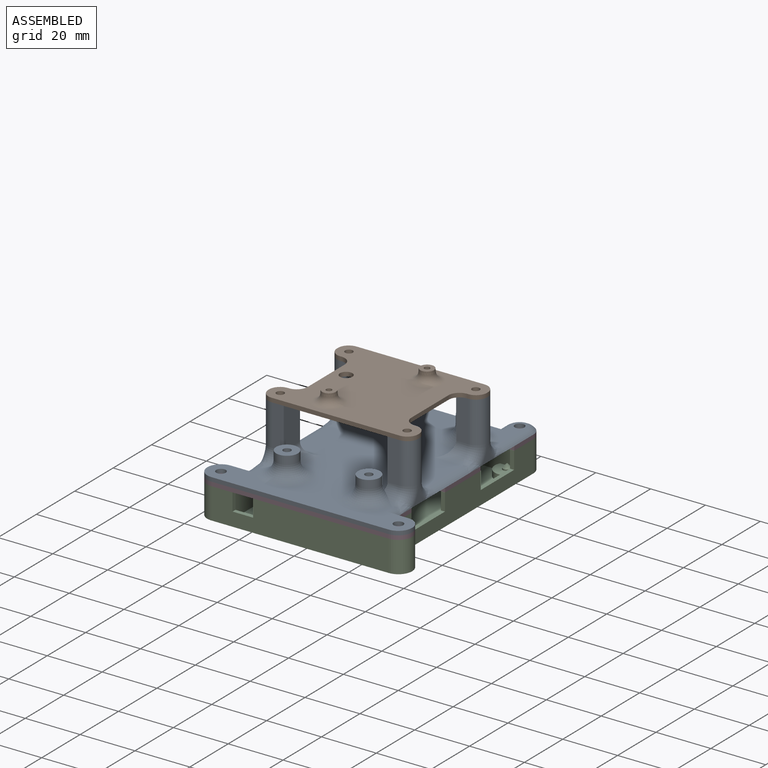
[diagram: assembled view]
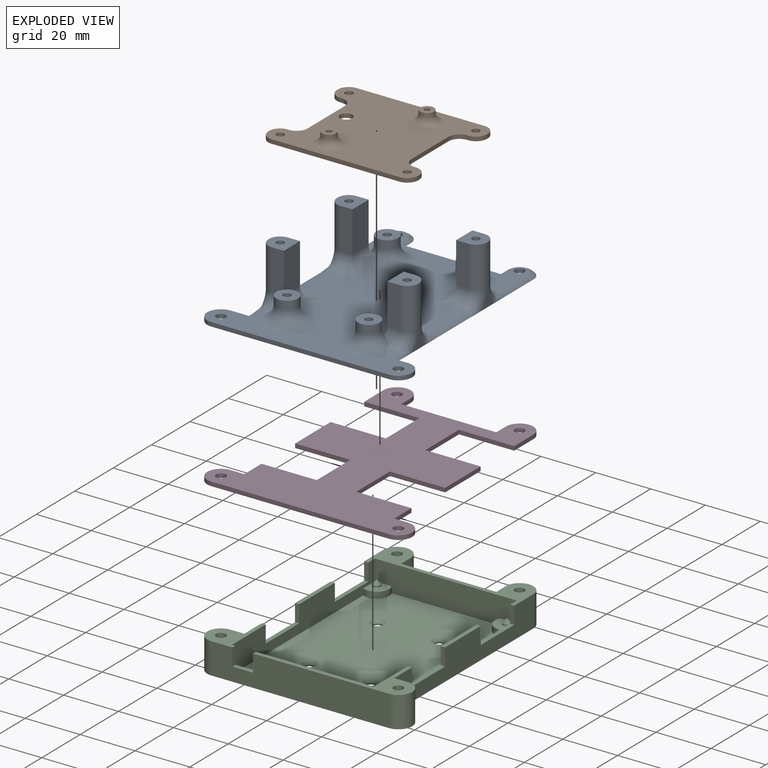
[diagram: exploded view]
GUIDED TOUR — MATED ASSEMBLY (Onshape document 62cdc433bf6db0029c8e20dd, AutoMate assembly 62cdc433bf6db0029c8e20dd_2d98a18a4e840f13da6ca52f_2cfb19b8febb69d8958ea850_default)

This assembly has 4 components, labeled P0..P3 below (a component is one placed occurrence of a part; the same part can appear more than once), held together by 3 mates. A mate is a constraint between two components; its type names the relative motion it leaves free:
  FASTENED — locks the two components together rigidly (no relative motion).
Axis/direction vectors are unit vectors and 'through' points are millimeter coordinates, both in the assembly's world frame.

MATES
  1. FASTENED "Fastened 2": P1 <-> P0, direction (0.000, 0.000, 1.000) through (-40.33, -23.82, 52.94) mm
  2. FASTENED "Fastened 1": P3 <-> P2, direction (0.000, 0.000, -1.000) through (15.16, -41.55, 29.94) mm
  3. FASTENED "Fastened 3": P3 <-> P0, direction (0.000, 0.000, 1.000) through (15.16, -41.55, 31.44) mm

ASSEMBLY ORDER
  1. P3 — the base component [order verified]
  2. P0 [order verified]
  3. P2 [order verified]
  4. P1 [order verified]
Order-tag legend:
  [order verified] — this step's position reverses a verified removal order: the component was checked to insert without passing through the ones already placed.

Of the 4 components, 2 carry the full construction recipe — the FeatureScript program that regenerates the part's solid from scratch; the rest are supplied as boundary geometry only.
Each toured component is shown spotlighted twice — in the assembled view, then in the exploded view, where a leader line traces a displaced component back to its assembled socket (saturated green if recipe-attached, orange if geometry-only; every other component desaturated gray) — followed by its recipe or geometry summary and the mates that hold it.
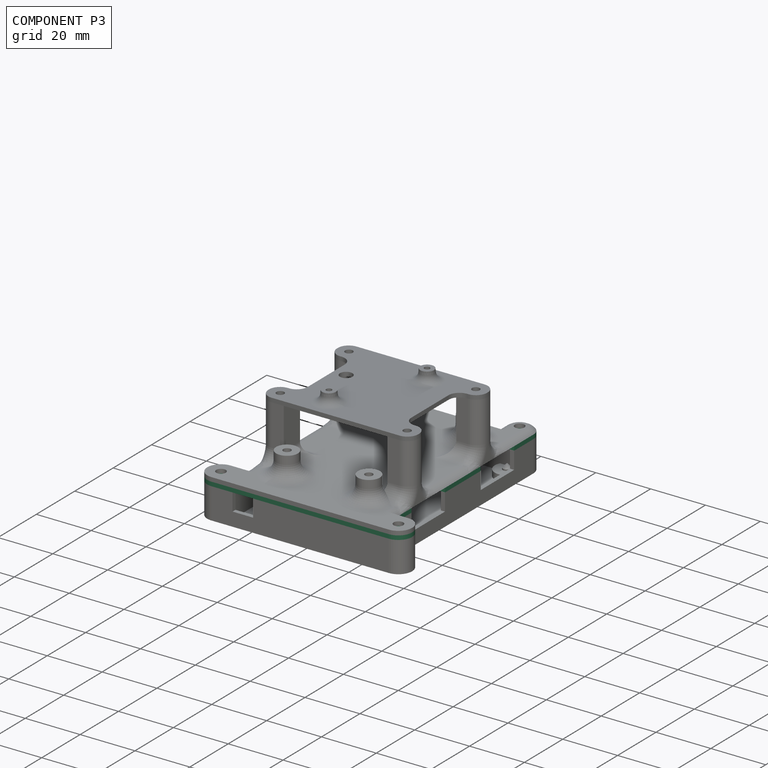
[diagram: component P3 — assembled]
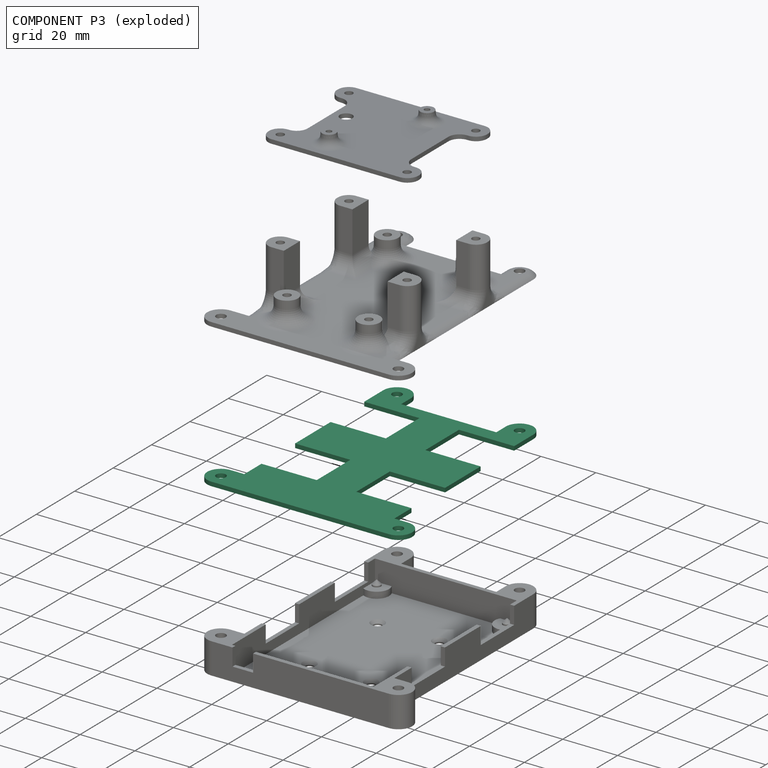
[diagram: component P3 — exploded]
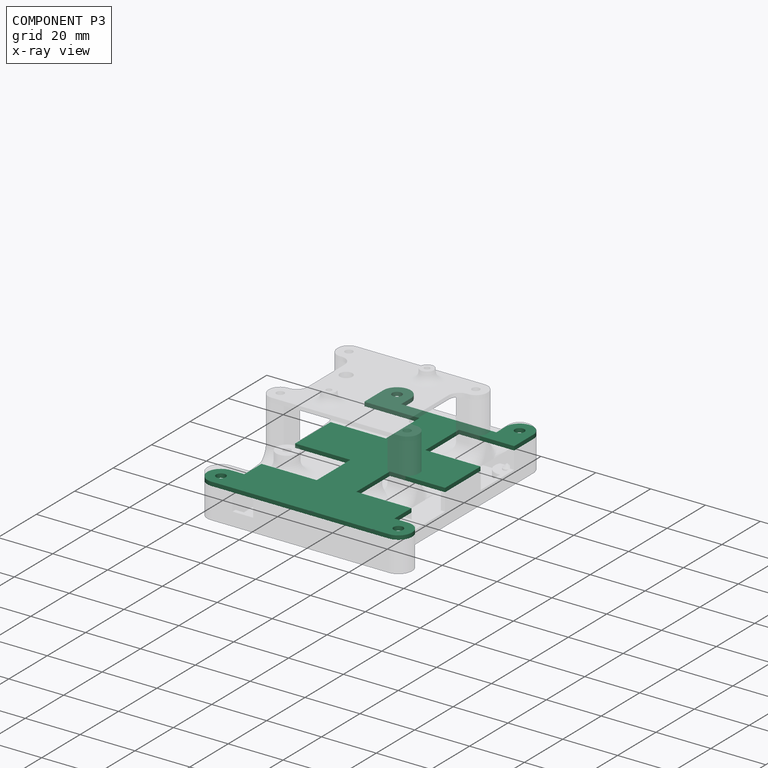
[diagram: component P3 — x-ray view]
COMPONENT P3 — recipe-attached (CADFS 00869252, mesh-verified: the recipe's output STEP matches this component's geometry to below the mesh-comparison resolution (tessellation chordal tolerance ~0.172 mm)).
Held by: FASTENED mate "Fastened 1" to P2; FASTENED mate "Fastened 3" to P0.
Construction recipe (FeatureScript — the CAD program that rebuilds this solid; sketch coordinates are in the units given by the * unit suffixes, e.g. mm):

FeatureScript 1549;
import(path : "onshape/std/geometry.fs", version : "1549.0");
import(path : "onshape/std/common.fs", version : "1549.0");
const mm = millimeter;
const VERTEX = EntityType.VERTEX;
const EDGE = EntityType.EDGE;
const FACE = EntityType.FACE;
const BODY = EntityType.BODY;
function v(x, y){return vector(x, y);}
function OD(order){return orderDisambiguation(order);}
function OSD(set){return originalSetDisambiguation(set);}
function TD(topology){return topologyDisambiguation(topology);}
function TDD(query){return trueDependencyDisambiguation(query);}
function sQuery(a, b, c) {return sketchEntityQuery(a, b, c);}

annotation { "Feature Type Name" : "Feature", "Feature Type Description" : "" }
export const myFeature = defineFeature(function(context is Context, id is Id, definition is map)
    precondition{}
    {
        {
            var Q0;
            Q0=qCreatedBy(makeId("Top.planeOp"),FACE);
            var sketch = newSketch(context, id + "F0", { "sketchPlane" : qUnion([Q0])});
            skLineSegment(sketch, "E0.bottom", {"start": v(0, 0) * mm, "end": v(51.3, 0) * mm});
            skLineSegment(sketch, "E0.top", {"start": v(0, 74) * mm, "end": v(51.3, 74) * mm});
            skLineSegment(sketch, "E0.left", {"start": v(0, 0) * mm, "end": v(0, 74) * mm});
            skLineSegment(sketch, "E0.right", {"start": v(51.3, 0) * mm, "end": v(51.3, 74) * mm});
            skLineSegment(sketch, "E1.bottom", {"start": v(0, 69) * mm, "end": v(16.7, 69) * mm, "construction": true});
            skLineSegment(sketch, "E1.top", {"start": v(0, 55) * mm, "end": v(16.7, 55) * mm, "construction": true});
            skLineSegment(sketch, "E1.left", {"start": v(0, 69) * mm, "end": v(0, 55) * mm, "construction": true});
            skLineSegment(sketch, "E1.right", {"start": v(16.7, 69) * mm, "end": v(16.7, 55) * mm, "construction": true});
            skLineSegment(sketch, "E2.bottom", {"start": v(0, 33) * mm, "end": v(16.7, 33) * mm, "construction": true});
            skLineSegment(sketch, "E2.top", {"start": v(0, 19) * mm, "end": v(16.7, 19) * mm, "construction": true});
            skLineSegment(sketch, "E2.left", {"start": v(0, 33) * mm, "end": v(0, 19) * mm, "construction": true});
            skLineSegment(sketch, "E2.right", {"start": v(16.7, 33) * mm, "end": v(16.7, 19) * mm, "construction": true});
            skLineSegment(sketch, "E3.bottom", {"start": v(51.3, 69) * mm, "end": v(34.6, 69) * mm, "construction": true});
            skLineSegment(sketch, "E3.top", {"start": v(51.3, 55) * mm, "end": v(34.6, 55) * mm, "construction": true});
            skLineSegment(sketch, "E3.left", {"start": v(51.3, 69) * mm, "end": v(51.3, 55) * mm, "construction": true});
            skLineSegment(sketch, "E3.right", {"start": v(34.6, 69) * mm, "end": v(34.6, 55) * mm, "construction": true});
            skLineSegment(sketch, "E4.bottom", {"start": v(51.3, 33) * mm, "end": v(34.6, 33) * mm, "construction": true});
            skLineSegment(sketch, "E4.top", {"start": v(51.3, 19) * mm, "end": v(34.6, 19) * mm, "construction": true});
            skLineSegment(sketch, "E4.left", {"start": v(51.3, 33) * mm, "end": v(51.3, 19) * mm, "construction": true});
            skLineSegment(sketch, "E4.right", {"start": v(34.6, 33) * mm, "end": v(34.6, 19) * mm, "construction": true});
            skCircle(sketch, "E5", {"center": v(11.21, 3.92) * mm, "radius": 1.6 * mm});
            skCircle(sketch, "E6", {"center": v(32.51, 3.92) * mm, "radius": 1.6 * mm});
            skCircle(sketch, "E7", {"center": v(49.43, 3.92) * mm, "radius": 1.6 * mm});
            skCircle(sketch, "E8", {"center": v(49.43, 72.12) * mm, "radius": 1.6 * mm});
            skCircle(sketch, "E9", {"center": v(1.88, 72.12) * mm, "radius": 1.6 * mm});
            skLineSegment(sketch, "E10", {"start": v(1.88, 72.12) * mm, "end": v(49.43, 72.12) * mm, "construction": true});
            skSolve(sketch);
        }
        {
            var Q0;
            {var subQ10=sQuery(id+"F0.wireOp",EDGE,"E0.bottom");Q0=makeQuery(id+"F0.imprint","IMPRINT",FACE,{"disambiguationData":[TD([[makeQuery(id+"F0.imprint","IMPRINT",EDGE,{"derivedFrom":subQ10}),1.0]])]});}
            var sketch = newSketch(context, id + "F1", { "sketchPlane" : qUnion([Q0])});
            skLineSegment(sketch, "E11.0", {"start": v(-1.7, -1.7) * mm, "end": v(-1.7, 75.7) * mm});
            skLineSegment(sketch, "E11.1", {"start": v(-1.7, -1.7) * mm, "end": v(53, -1.7) * mm});
            skLineSegment(sketch, "E11.2", {"start": v(53, -1.7) * mm, "end": v(53, 75.7) * mm});
            skLineSegment(sketch, "E11.3", {"start": v(-1.7, 75.7) * mm, "end": v(53, 75.7) * mm});
            skSolve(sketch);
        }
        {
            var Q0;
            Q0=qSketchRegion(id+"F1",true);
            extrude(context, id + "F2", {"entities" : qUnion([Q0]), "depth" : 1.5 * mm, "offsetDistance" : 25 * mm});
        }
        {
            var Q0;
            Q0=makeQuery(id+"F2.opExtrude","CAP_FACE",FACE,{"disambiguationData":[OSD([sQuery(id+"F1.wireOp",EDGE,"E11.0"),sQuery(id+"F1.wireOp",EDGE,"E11.1"),sQuery(id+"F1.wireOp",EDGE,"E11.2"),sQuery(id+"F1.wireOp",EDGE,"E11.3")])],"isStart":true});
            var sketch = newSketch(context, id + "F3", { "sketchPlane" : qUnion([Q0])});
            skArc(sketch, "E12", {"start": v(-6.7, 1.7) * mm, "mid": v(-11.7, -3.3) * mm, "end": v(-6.7, -8.3) * mm});
            skArc(sketch, "E13", {"start": v(-1.7, -80.7) * mm, "mid": v(3.3, -85.7) * mm, "end": v(8.3, -80.7) * mm});
            skLineSegment(sketch, "E14", {"start": v(-1.7, 1.7) * mm, "end": v(-6.7, 1.7) * mm});
            skLineSegment(sketch, "E15", {"start": v(-6.7, -8.3) * mm, "end": v(-1.7, -8.3) * mm});
            skLineSegment(sketch, "E16", {"start": v(25.65, 1.7) * mm, "end": v(25.65, -75.7) * mm, "construction": true});
            skLineSegment(sketch, "E17", {"start": v(-1.7, 1.7) * mm, "end": v(-1.7, -8.3) * mm});
            skLineSegment(sketch, "E18", {"start": v(-1.7, -75.7) * mm, "end": v(-1.7, -80.7) * mm});
            skLineSegment(sketch, "E19", {"start": v(8.3, -80.7) * mm, "end": v(8.3, -75.7) * mm});
            skLineSegment(sketch, "E20", {"start": v(-1.7, -75.7) * mm, "end": v(8.3, -75.7) * mm});
            skLineSegment(sketch, "E21.MirrorCS", {"start": v(58, -8.3) * mm, "end": v(53, -8.3) * mm});
            skLineSegment(sketch, "E22.MirrorCS", {"start": v(43, -80.7) * mm, "end": v(43, -75.7) * mm});
            skLineSegment(sketch, "E23.MirrorCS", {"start": v(53, 1.7) * mm, "end": v(58, 1.7) * mm});
            skLineSegment(sketch, "E24.MirrorCS", {"start": v(53, -75.7) * mm, "end": v(53, -80.7) * mm});
            skLineSegment(sketch, "E25.MirrorCS", {"start": v(53, 1.7) * mm, "end": v(53, -8.3) * mm});
            skLineSegment(sketch, "E26.MirrorCS", {"start": v(53, -75.7) * mm, "end": v(43, -75.7) * mm});
            skArc(sketch, "E27.MirrorCS", {"start": v(53, -80.7) * mm, "mid": v(48, -85.7) * mm, "end": v(43, -80.7) * mm});
            skArc(sketch, "E28.MirrorCS", {"start": v(58, 1.7) * mm, "mid": v(63, -3.3) * mm, "end": v(58, -8.3) * mm});
            skCircle(sketch, "E29", {"center": v(-6.7, -3.3) * mm, "radius": 1.75 * mm});
            skCircle(sketch, "E30", {"center": v(58, -3.3) * mm, "radius": 1.75 * mm});
            skCircle(sketch, "E31", {"center": v(48, -80.7) * mm, "radius": 1.75 * mm});
            skCircle(sketch, "E32", {"center": v(3.3, -80.7) * mm, "radius": 1.75 * mm});
            skSolve(sketch);
        }
        {
            var Q0;
            Q0=qSketchRegion(id+"F3",true);
            var Q1;
            {var subQ0=sQuery(id+"F1.wireOp",EDGE,"E11.0");var subQ1=sQuery(id+"F1.wireOp",EDGE,"E11.2");var subQ2=sQuery(id+"F1.wireOp",EDGE,"E11.3");Q1=makeQuery(id+"FCauK0S3PUZOb4y_1.boolean.opBoolean","SPLIT",FACE,{"disambiguationData":[TD([makeQuery(id+"F2.opExtrude","SWEPT_FACE",FACE,{"disambiguationData":[OSD([subQ2])]})])],"derivedFrom":makeQuery(id+"F2.opExtrude","CAP_FACE",FACE,{"disambiguationData":[OSD([subQ0,sQuery(id+"F1.wireOp",EDGE,"E11.1"),subQ1,subQ2])],"isStart":false})});}
            extrude(context, id + "F4", {"entities" : qUnion([Q0]), "operationType" : NewBodyOperationType.ADD, "oppositeDirection" : true, "depth" : 1.5 * mm, "endBoundEntityFace" : qUnion([Q1]), "offsetDistance" : 25 * mm});
        }
        {
            var Q0;
            Q0=makeQuery(id+"F4.boolean.opBoolean","MERGE",FACE,{"derivedFrom":[makeQuery(id+"F2.opExtrude","CAP_FACE",FACE,{"disambiguationData":[OSD([sQuery(id+"F1.wireOp",EDGE,"E11.0"),sQuery(id+"F1.wireOp",EDGE,"E11.1"),sQuery(id+"F1.wireOp",EDGE,"E11.2"),sQuery(id+"F1.wireOp",EDGE,"E11.3")])],"isStart":false}),makeQuery(id+"F4.opExtrude","CAP_FACE",FACE,{"disambiguationData":[OSD([sQuery(id+"F3.wireOp",EDGE,"E12"),sQuery(id+"F3.wireOp",EDGE,"E14"),sQuery(id+"F3.wireOp",EDGE,"E15"),sQuery(id+"F3.wireOp",EDGE,"E17"),sQuery(id+"F3.wireOp",EDGE,"E29")])],"isStart":false}),makeQuery(id+"F4.opExtrude","CAP_FACE",FACE,{"disambiguationData":[OSD([sQuery(id+"F3.wireOp",EDGE,"E13"),sQuery(id+"F3.wireOp",EDGE,"E18"),sQuery(id+"F3.wireOp",EDGE,"E19"),sQuery(id+"F3.wireOp",EDGE,"E20"),sQuery(id+"F3.wireOp",EDGE,"E32")])],"isStart":false}),makeQuery(id+"F4.opExtrude","CAP_FACE",FACE,{"disambiguationData":[OSD([sQuery(id+"F3.wireOp",EDGE,"E21.MirrorCS"),sQuery(id+"F3.wireOp",EDGE,"E23.MirrorCS"),sQuery(id+"F3.wireOp",EDGE,"E25.MirrorCS"),sQuery(id+"F3.wireOp",EDGE,"E28.MirrorCS"),sQuery(id+"F3.wireOp",EDGE,"E30")])],"isStart":false}),makeQuery(id+"F4.opExtrude","CAP_FACE",FACE,{"disambiguationData":[OSD([sQuery(id+"F3.wireOp",EDGE,"E22.MirrorCS"),sQuery(id+"F3.wireOp",EDGE,"E24.MirrorCS"),sQuery(id+"F3.wireOp",EDGE,"E26.MirrorCS"),sQuery(id+"F3.wireOp",EDGE,"E27.MirrorCS"),sQuery(id+"F3.wireOp",EDGE,"E31")])],"isStart":false})]});
            var sketch = newSketch(context, id + "F5", { "sketchPlane" : qUnion([Q0])});
            skLineSegment(sketch, "E33.0", {"start": v(-1.75, 17.25) * mm, "end": v(18.45, 17.25) * mm});
            skLineSegment(sketch, "E33.1", {"start": v(-1.75, 34.75) * mm, "end": v(-1.75, 17.25) * mm});
            skLineSegment(sketch, "E33.2", {"start": v(-1.75, 34.75) * mm, "end": v(18.45, 34.75) * mm});
            skLineSegment(sketch, "E33.3", {"start": v(18.45, 34.75) * mm, "end": v(18.45, 17.25) * mm});
            skLineSegment(sketch, "E34.0", {"start": v(32.86, 34.75) * mm, "end": v(32.86, 17.25) * mm});
            skLineSegment(sketch, "E34.1", {"start": v(53.06, 34.75) * mm, "end": v(32.86, 34.75) * mm});
            skLineSegment(sketch, "E34.2", {"start": v(53.06, 34.75) * mm, "end": v(53.06, 17.25) * mm});
            skLineSegment(sketch, "E34.3", {"start": v(53.06, 17.25) * mm, "end": v(32.86, 17.25) * mm});
            skLineSegment(sketch, "E35.0", {"start": v(-1.75, 70.75) * mm, "end": v(18.45, 70.75) * mm});
            skLineSegment(sketch, "E35.1", {"start": v(-1.75, 70.75) * mm, "end": v(-1.75, 53.25) * mm});
            skLineSegment(sketch, "E35.2", {"start": v(-1.75, 53.25) * mm, "end": v(18.45, 53.25) * mm});
            skLineSegment(sketch, "E35.3", {"start": v(18.45, 70.75) * mm, "end": v(18.45, 53.25) * mm});
            skLineSegment(sketch, "E36.0", {"start": v(32.86, 70.75) * mm, "end": v(32.86, 53.25) * mm});
            skLineSegment(sketch, "E36.1", {"start": v(53.06, 70.75) * mm, "end": v(32.86, 70.75) * mm});
            skLineSegment(sketch, "E36.2", {"start": v(53.06, 70.75) * mm, "end": v(53.06, 53.25) * mm});
            skLineSegment(sketch, "E36.3", {"start": v(53.06, 53.25) * mm, "end": v(32.86, 53.25) * mm});
            skSolve(sketch);
        }
        {
            var Q0;
            Q0 = qSketchRegion(id + "F5", true);
            extrude(context, id + "F6", {"entities" : qUnion([Q0]), "operationType" : NewBodyOperationType.REMOVE, "endBound" : BoundingType.THROUGH_ALL, "oppositeDirection" : true, "depth" : 25 * mm, "offsetDistance" : 25 * mm});
        }
    });
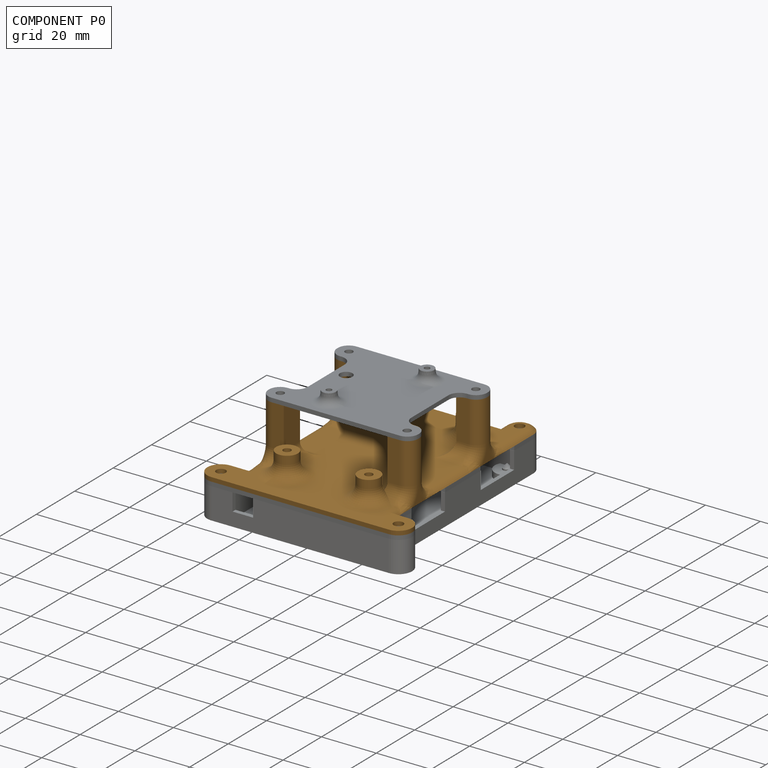
[diagram: component P0 — assembled]
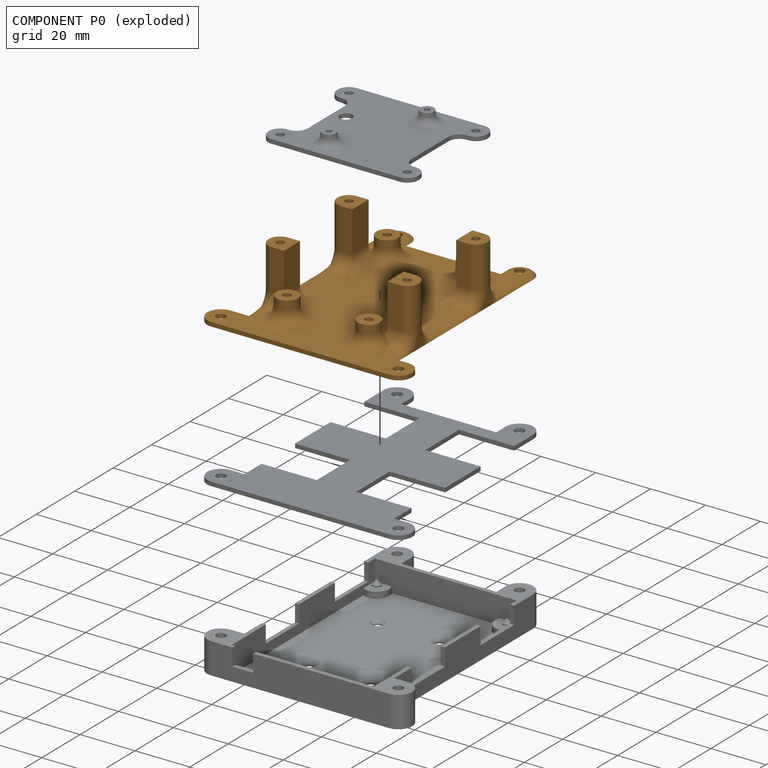
[diagram: component P0 — exploded]
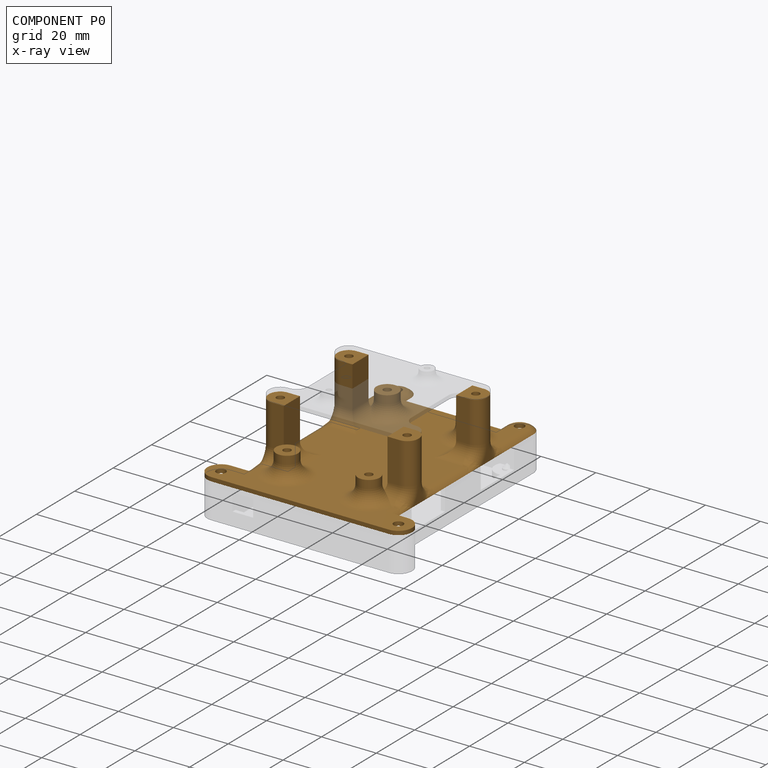
[diagram: component P0 — x-ray view]
COMPONENT P0 — geometry summary (no construction recipe available for this part):
  bounding box: 87.9 x 75.2 x 24.7 mm
  B-rep topology: 1 solid, 106 faces, 510 edges
  volume: 13876 mm^3 (8% of its bounding box)
  symmetry: mirror-symmetric across its x mid-plane
Held by: FASTENED mate "Fastened 2" to P1; FASTENED mate "Fastened 3" to P3.
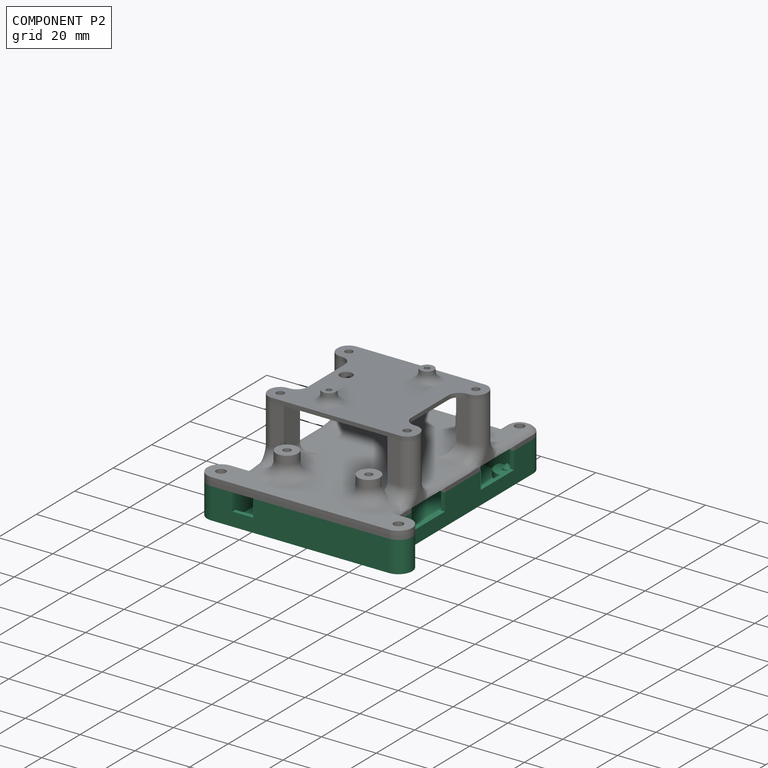
[diagram: component P2 — assembled]
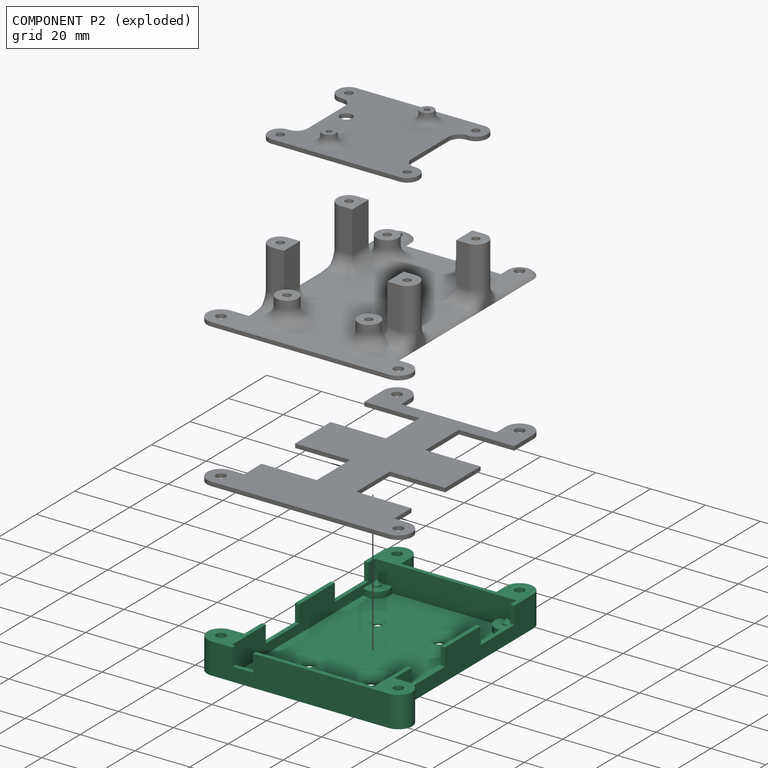
[diagram: component P2 — exploded]
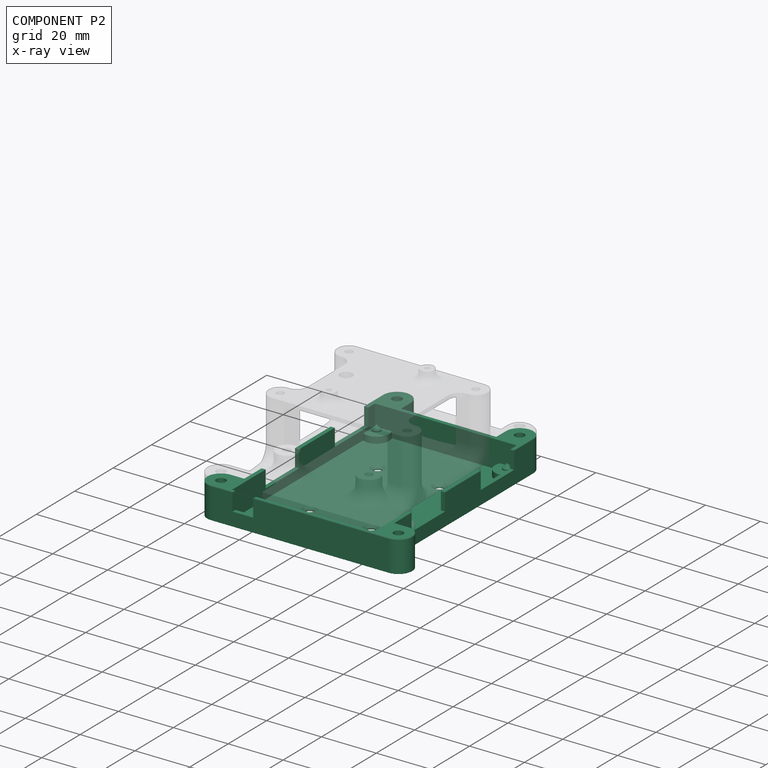
[diagram: component P2 — x-ray view]
COMPONENT P2 — recipe-attached (CADFS 00869254, mesh-verified: the recipe's output STEP matches this component's geometry to below the mesh-comparison resolution (tessellation chordal tolerance ~0.173 mm)).
Held by: FASTENED mate "Fastened 1" to P3.
Construction recipe (FeatureScript — the CAD program that rebuilds this solid; sketch coordinates are in the units given by the * unit suffixes, e.g. mm):

FeatureScript 1549;
import(path : "onshape/std/geometry.fs", version : "1549.0");
import(path : "onshape/std/common.fs", version : "1549.0");
const mm = millimeter;
const VERTEX = EntityType.VERTEX;
const EDGE = EntityType.EDGE;
const FACE = EntityType.FACE;
const BODY = EntityType.BODY;
function v(x, y){return vector(x, y);}
function OD(order){return orderDisambiguation(order);}
function OSD(set){return originalSetDisambiguation(set);}
function TD(topology){return topologyDisambiguation(topology);}
function TDD(query){return trueDependencyDisambiguation(query);}
function sQuery(a, b, c) {return sketchEntityQuery(a, b, c);}

annotation { "Feature Type Name" : "Feature", "Feature Type Description" : "" }
export const myFeature = defineFeature(function(context is Context, id is Id, definition is map)
    precondition{}
    {
        {
            var Q0;
            Q0=qCreatedBy(makeId("Top.planeOp"),FACE);
            var sketch = newSketch(context, id + "F0", { "sketchPlane" : qUnion([Q0])});
            skLineSegment(sketch, "E0.bottom", {"start": v(0, 0) * mm, "end": v(51.3, 0) * mm});
            skLineSegment(sketch, "E0.top", {"start": v(0, 74) * mm, "end": v(51.3, 74) * mm});
            skLineSegment(sketch, "E0.left", {"start": v(0, 0) * mm, "end": v(0, 74) * mm});
            skLineSegment(sketch, "E0.right", {"start": v(51.3, 0) * mm, "end": v(51.3, 74) * mm});
            skLineSegment(sketch, "E1.bottom", {"start": v(0, 69) * mm, "end": v(16.7, 69) * mm, "construction": true});
            skLineSegment(sketch, "E1.top", {"start": v(0, 55) * mm, "end": v(16.7, 55) * mm, "construction": true});
            skLineSegment(sketch, "E1.left", {"start": v(0, 69) * mm, "end": v(0, 55) * mm, "construction": true});
            skLineSegment(sketch, "E1.right", {"start": v(16.7, 69) * mm, "end": v(16.7, 55) * mm, "construction": true});
            skLineSegment(sketch, "E2.bottom", {"start": v(0, 33) * mm, "end": v(16.7, 33) * mm, "construction": true});
            skLineSegment(sketch, "E2.top", {"start": v(0, 19) * mm, "end": v(16.7, 19) * mm, "construction": true});
            skLineSegment(sketch, "E2.left", {"start": v(0, 33) * mm, "end": v(0, 19) * mm, "construction": true});
            skLineSegment(sketch, "E2.right", {"start": v(16.7, 33) * mm, "end": v(16.7, 19) * mm, "construction": true});
            skLineSegment(sketch, "E3.bottom", {"start": v(51.3, 69) * mm, "end": v(34.6, 69) * mm, "construction": true});
            skLineSegment(sketch, "E3.top", {"start": v(51.3, 55) * mm, "end": v(34.6, 55) * mm, "construction": true});
            skLineSegment(sketch, "E3.left", {"start": v(51.3, 69) * mm, "end": v(51.3, 55) * mm, "construction": true});
            skLineSegment(sketch, "E3.right", {"start": v(34.6, 69) * mm, "end": v(34.6, 55) * mm, "construction": true});
            skLineSegment(sketch, "E4.bottom", {"start": v(51.3, 33) * mm, "end": v(34.6, 33) * mm, "construction": true});
            skLineSegment(sketch, "E4.top", {"start": v(51.3, 19) * mm, "end": v(34.6, 19) * mm, "construction": true});
            skLineSegment(sketch, "E4.left", {"start": v(51.3, 33) * mm, "end": v(51.3, 19) * mm, "construction": true});
            skLineSegment(sketch, "E4.right", {"start": v(34.6, 33) * mm, "end": v(34.6, 19) * mm, "construction": true});
            skCircle(sketch, "E5", {"center": v(11.21, 3.92) * mm, "radius": 1.6 * mm});
            skCircle(sketch, "E6", {"center": v(32.51, 3.92) * mm, "radius": 1.6 * mm});
            skCircle(sketch, "E7", {"center": v(49.43, 3.92) * mm, "radius": 1.6 * mm});
            skCircle(sketch, "E8", {"center": v(49.43, 72.12) * mm, "radius": 1.6 * mm});
            skCircle(sketch, "E9", {"center": v(1.88, 72.12) * mm, "radius": 1.6 * mm});
            skLineSegment(sketch, "E10", {"start": v(1.88, 72.12) * mm, "end": v(49.43, 72.12) * mm, "construction": true});
            skSolve(sketch);
        }
        {
            var Q0;
            {var subQ10=sQuery(id+"F0.wireOp",EDGE,"E0.bottom");Q0=makeQuery(id+"F0.imprint","IMPRINT",FACE,{"disambiguationData":[TD([[makeQuery(id+"F0.imprint","IMPRINT",EDGE,{"derivedFrom":subQ10}),1.0]])]});}
            var sketch = newSketch(context, id + "F1", { "sketchPlane" : qUnion([Q0])});
            skLineSegment(sketch, "E11.0", {"start": v(-1.7, -1.7) * mm, "end": v(-1.7, 75.7) * mm});
            skLineSegment(sketch, "E11.1", {"start": v(-1.7, -1.7) * mm, "end": v(53, -1.7) * mm});
            skLineSegment(sketch, "E11.2", {"start": v(53, -1.7) * mm, "end": v(53, 75.7) * mm});
            skLineSegment(sketch, "E11.3", {"start": v(-1.7, 75.7) * mm, "end": v(53, 75.7) * mm});
            skSolve(sketch);
        }
        {
            var Q0;
            Q0=qSketchRegion(id+"F1",true);
            extrude(context, id + "F2", {"entities" : qUnion([Q0]), "depth" : 11.3 * mm, "offsetDistance" : 25 * mm});
        }
        {
            var Q0;
            Q0=makeQuery(id+"F2.opExtrude","CAP_FACE",FACE,{"disambiguationData":[OSD([sQuery(id+"F1.wireOp",EDGE,"E11.0"),sQuery(id+"F1.wireOp",EDGE,"E11.1"),sQuery(id+"F1.wireOp",EDGE,"E11.2"),sQuery(id+"F1.wireOp",EDGE,"E11.3")])],"isStart":false});
            shell(context, id + "F3", {"entities" : qUnion([Q0]), "thickness" : 1.5 * mm});
        }
        {
            var Q0;
            Q0=makeQuery(id+"F2.opExtrude","CAP_FACE",FACE,{"disambiguationData":[OSD([sQuery(id+"F1.wireOp",EDGE,"E11.0"),sQuery(id+"F1.wireOp",EDGE,"E11.1"),sQuery(id+"F1.wireOp",EDGE,"E11.2"),sQuery(id+"F1.wireOp",EDGE,"E11.3")])],"isStart":false});
            var sketch = newSketch(context, id + "F4", { "sketchPlane" : qUnion([Q0])});
            skLineSegment(sketch, "E12.0", {"start": v(16.7, 33) * mm, "end": v(16.7, 19) * mm, "construction": true});
            skLineSegment(sketch, "E13.0", {"start": v(34.6, 33) * mm, "end": v(34.6, 19) * mm, "construction": true});
            skLineSegment(sketch, "E14.0", {"start": v(16.7, 69) * mm, "end": v(16.7, 55) * mm, "construction": true});
            skLineSegment(sketch, "E15.0", {"start": v(34.6, 69) * mm, "end": v(34.6, 55) * mm, "construction": true});
            skLineSegment(sketch, "E16.0", {"start": v(0, 33) * mm, "end": v(16.7, 33) * mm, "construction": true});
            skLineSegment(sketch, "E17.0", {"start": v(0, 19) * mm, "end": v(16.7, 19) * mm, "construction": true});
            skLineSegment(sketch, "E18.0", {"start": v(51.3, 33) * mm, "end": v(34.6, 33) * mm, "construction": true});
            skLineSegment(sketch, "E19.0", {"start": v(51.3, 19) * mm, "end": v(34.6, 19) * mm, "construction": true});
            skLineSegment(sketch, "E20.0", {"start": v(51.3, 55) * mm, "end": v(34.6, 55) * mm, "construction": true});
            skLineSegment(sketch, "E21.0", {"start": v(51.3, 69) * mm, "end": v(34.6, 69) * mm, "construction": true});
            skLineSegment(sketch, "E22.0", {"start": v(0, 55) * mm, "end": v(16.7, 55) * mm, "construction": true});
            skLineSegment(sketch, "E23.0", {"start": v(0, 69) * mm, "end": v(16.7, 69) * mm, "construction": true});
            skLineSegment(sketch, "E24.0", {"start": v(0, 33) * mm, "end": v(0, 19) * mm});
            skLineSegment(sketch, "E25.0", {"start": v(51.3, 33) * mm, "end": v(51.3, 19) * mm});
            skLineSegment(sketch, "E26.0", {"start": v(0, 69) * mm, "end": v(0, 55) * mm});
            skLineSegment(sketch, "E27.0", {"start": v(51.3, 69) * mm, "end": v(51.3, 55) * mm});
            skLineSegment(sketch, "E28.0", {"start": v(-1.7, 17.3) * mm, "end": v(18.4, 17.3) * mm});
            skLineSegment(sketch, "E28.1", {"start": v(-1.7, 34.7) * mm, "end": v(-1.7, 17.3) * mm});
            skLineSegment(sketch, "E28.2", {"start": v(-1.7, 34.7) * mm, "end": v(18.4, 34.7) * mm});
            skLineSegment(sketch, "E28.3", {"start": v(18.4, 34.7) * mm, "end": v(18.4, 17.3) * mm});
            skLineSegment(sketch, "E29.0", {"start": v(53, 17.3) * mm, "end": v(32.9, 17.3) * mm});
            skLineSegment(sketch, "E29.1", {"start": v(53, 34.7) * mm, "end": v(53, 17.3) * mm});
            skLineSegment(sketch, "E29.2", {"start": v(53, 34.7) * mm, "end": v(32.9, 34.7) * mm});
            skLineSegment(sketch, "E29.3", {"start": v(32.9, 34.7) * mm, "end": v(32.9, 17.3) * mm});
            skLineSegment(sketch, "E30.0", {"start": v(-1.7, 53.3) * mm, "end": v(18.4, 53.3) * mm});
            skLineSegment(sketch, "E30.1", {"start": v(-1.7, 70.7) * mm, "end": v(-1.7, 53.3) * mm});
            skLineSegment(sketch, "E30.2", {"start": v(-1.7, 70.7) * mm, "end": v(18.4, 70.7) * mm});
            skLineSegment(sketch, "E30.3", {"start": v(18.4, 70.7) * mm, "end": v(18.4, 53.3) * mm});
            skLineSegment(sketch, "E31.0", {"start": v(53, 53.3) * mm, "end": v(32.9, 53.3) * mm});
            skLineSegment(sketch, "E31.1", {"start": v(53, 70.7) * mm, "end": v(53, 53.3) * mm});
            skLineSegment(sketch, "E31.2", {"start": v(53, 70.7) * mm, "end": v(32.9, 70.7) * mm});
            skLineSegment(sketch, "E31.3", {"start": v(32.9, 70.7) * mm, "end": v(32.9, 53.3) * mm});
            skSolve(sketch);
        }
        {
            var Q0;
            Q0=qSketchRegion(id+"F4",true);
            var Q1;
            Q1=makeQuery(id+"F3.opShell","OFFSET_FACE",FACE,{"disambiguationData":[OSD([sQuery(id+"F1.wireOp",EDGE,"E11.0"),sQuery(id+"F1.wireOp",EDGE,"E11.1"),sQuery(id+"F1.wireOp",EDGE,"E11.2"),sQuery(id+"F1.wireOp",EDGE,"E11.3")])]});
            extrude(context, id + "F5", {"entities" : qUnion([Q0]), "operationType" : NewBodyOperationType.REMOVE, "endBound" : BoundingType.UP_TO_SURFACE, "oppositeDirection" : true, "depth" : 25 * mm, "endBoundEntityFace" : qUnion([Q1]), "hasOffset" : true, "offsetDistance" : 3.5 * mm});
        }
        {
            var Q0;
            Q0=makeQuery(id+"F3.opShell","OFFSET_FACE",FACE,{"disambiguationData":[OSD([sQuery(id+"F1.wireOp",EDGE,"E11.0"),sQuery(id+"F1.wireOp",EDGE,"E11.1"),sQuery(id+"F1.wireOp",EDGE,"E11.2"),sQuery(id+"F1.wireOp",EDGE,"E11.3")])]});
            var sketch = newSketch(context, id + "F6", { "sketchPlane" : qUnion([Q0])});
            skCircle(sketch, "E32.0", {"center": v(1.88, 72.12) * mm, "radius": 1.5 * mm, "construction": true});
            skCircle(sketch, "E33.0", {"center": v(49.43, 72.12) * mm, "radius": 1.5 * mm, "construction": true});
            skCircle(sketch, "E34.0", {"center": v(11.21, 3.92) * mm, "radius": 1.5 * mm, "construction": true});
            skCircle(sketch, "E35.0", {"center": v(32.51, 3.92) * mm, "radius": 1.5 * mm, "construction": true});
            skCircle(sketch, "E36.0", {"center": v(49.43, 3.92) * mm, "radius": 1.5 * mm, "construction": true});
            skArc(sketch, "E37.0", {"start": v(-1.7, 69.4) * mm, "mid": v(6.38, 72.12) * mm, "end": v(-1.7, 74.85) * mm});
            skArc(sketch, "E38.0", {"start": v(53, 74.85) * mm, "mid": v(44.93, 72.12) * mm, "end": v(53, 69.4) * mm});
            skCircle(sketch, "E39.0", {"center": v(11.21, 3.92) * mm, "radius": 4.5 * mm});
            skCircle(sketch, "E40.0", {"center": v(32.51, 3.92) * mm, "radius": 4.5 * mm});
            skArc(sketch, "E41.0", {"start": v(53, 6.65) * mm, "mid": v(44.93, 3.92) * mm, "end": v(53, 1.2) * mm});
            skLineSegment(sketch, "E42.0", {"start": v(53, 1.2) * mm, "end": v(53, 6.65) * mm});
            skLineSegment(sketch, "E43.0", {"start": v(-1.7, 69.4) * mm, "end": v(-1.7, 74.85) * mm});
            skPoint(sketch, "E44.orphan", {"position": v(53, -1.7) * mm});
            skLineSegment(sketch, "E45.trimOffspring", {"start": v(53, 69.4) * mm, "end": v(53, 74.85) * mm});
            skPoint(sketch, "E46.orphan", {"position": v(-1.7, -1.7) * mm});
            skPoint(sketch, "E47.0.start.orphan", {"position": v(-1.7, 75.7) * mm});
            skPoint(sketch, "E48.orphan", {"position": v(53, 75.7) * mm});
            skSolve(sketch);
        }
        {
            var Q0;
            Q0=qSketchRegion(id+"F6",true);
            var Q1;
            Q1=makeQuery(id+"F5.boolean.opBoolean","COPY",FACE,{"derivedFrom":makeQuery(id+"F5.opExtrude","CAP_FACE",FACE,{"disambiguationData":[OSD([sQuery(id+"F4.wireOp",EDGE,"E28.0"),sQuery(id+"F4.wireOp",EDGE,"E28.1"),sQuery(id+"F4.wireOp",EDGE,"E28.2"),sQuery(id+"F4.wireOp",EDGE,"E28.3")])],"isStart":false})});
            extrude(context, id + "F7", {"entities" : qUnion([Q0]), "operationType" : NewBodyOperationType.ADD, "endBound" : BoundingType.UP_TO_SURFACE, "depth" : 25 * mm, "endBoundEntityFace" : qUnion([Q1]), "hasOffset" : true, "offsetDistance" : 1.2 * mm});
        }
        {
            var Q0;
            Q0=makeQuery(id+"F2.opExtrude","CAP_FACE",FACE,{"disambiguationData":[OSD([sQuery(id+"F1.wireOp",EDGE,"E11.0"),sQuery(id+"F1.wireOp",EDGE,"E11.1"),sQuery(id+"F1.wireOp",EDGE,"E11.2"),sQuery(id+"F1.wireOp",EDGE,"E11.3")])],"isStart":true});
            var sketch = newSketch(context, id + "F8", { "sketchPlane" : qUnion([Q0])});
            skLineSegment(sketch, "E49", {"start": v(25.65, -75.7) * mm, "end": v(25.65, 1.7) * mm, "construction": true});
            skLineSegment(sketch, "E50", {"start": v(-1.7, -37) * mm, "end": v(53, -37) * mm, "construction": true});
            skCircle(sketch, "E51", {"center": v(14.4, -54.75) * mm, "radius": 1.5 * mm});
            skCircle(sketch, "E52", {"center": v(14.4, -19.25) * mm, "radius": 1.5 * mm});
            skCircle(sketch, "E53", {"center": v(36.9, -19.25) * mm, "radius": 1.5 * mm});
            skCircle(sketch, "E54", {"center": v(36.9, -54.75) * mm, "radius": 1.5 * mm});
            skLineSegment(sketch, "E55", {"start": v(36.9, -54.75) * mm, "end": v(36.9, -19.25) * mm, "construction": true});
            skLineSegment(sketch, "E56", {"start": v(14.4, -19.25) * mm, "end": v(36.9, -19.25) * mm, "construction": true});
            skLineSegment(sketch, "E57", {"start": v(14.4, -54.75) * mm, "end": v(14.4, -19.25) * mm, "construction": true});
            skLineSegment(sketch, "E58", {"start": v(14.4, -54.75) * mm, "end": v(36.9, -54.75) * mm, "construction": true});
            skLineSegment(sketch, "E59", {"start": v(14.4, -37) * mm, "end": v(36.9, -37) * mm, "construction": true});
            skLineSegment(sketch, "E60", {"start": v(25.65, -19.25) * mm, "end": v(25.65, -54.75) * mm, "construction": true});
            skSolve(sketch);
        }
        {
            var Q0;
            Q0=qSketchRegion(id+"F8",true);
            extrude(context, id + "F9", {"entities" : qUnion([Q0]), "operationType" : NewBodyOperationType.REMOVE, "endBound" : BoundingType.THROUGH_ALL, "oppositeDirection" : true, "depth" : 25 * mm, "offsetDistance" : 25 * mm});
        }
        {
            var Q0;
            {var subQ0=sQuery(id+"F1.wireOp",EDGE,"E11.3");var subQ1=sQuery(id+"F1.wireOp",EDGE,"E11.2");var subQ2=sQuery(id+"F1.wireOp",EDGE,"E11.1");var subQ3=sQuery(id+"F1.wireOp",EDGE,"E11.0");Q0=makeQuery(id+"F9.boolean.opBoolean","INTERSECT",EDGE,{"derivedFrom":[makeQuery(id+"F7.boolean.opBoolean","SPLIT",FACE,{"disambiguationData":[TD([makeQuery(id+"F3.opShell","OFFSET_FACE",FACE,{"disambiguationData":[OSD([subQ3])]}),makeQuery(id+"F3.opShell","OFFSET_FACE",FACE,{"disambiguationData":[OSD([subQ2])]}),makeQuery(id+"F3.opShell","OFFSET_FACE",FACE,{"disambiguationData":[OSD([subQ1])]}),makeQuery(id+"F3.opShell","OFFSET_FACE",FACE,{"disambiguationData":[OSD([subQ0])]}),makeQuery(id+"F7.opExtrude","SWEPT_FACE",FACE,{"disambiguationData":[OSD([sQuery(id+"F6.wireOp",EDGE,"E37.0")])]}),makeQuery(id+"F7.opExtrude","SWEPT_FACE",FACE,{"disambiguationData":[OSD([sQuery(id+"F6.wireOp",EDGE,"E38.0")])]}),makeQuery(id+"F7.opExtrude","SWEPT_FACE",FACE,{"disambiguationData":[OSD([sQuery(id+"F6.wireOp",EDGE,"E39.0")])]}),makeQuery(id+"F7.opExtrude","SWEPT_FACE",FACE,{"disambiguationData":[OSD([sQuery(id+"F6.wireOp",EDGE,"E40.0")])]}),makeQuery(id+"F7.opExtrude","SWEPT_FACE",FACE,{"disambiguationData":[OSD([sQuery(id+"F6.wireOp",EDGE,"E41.0")])]})])],"derivedFrom":makeQuery(id+"F3.opShell","OFFSET_FACE",FACE,{"disambiguationData":[OSD([subQ3,subQ2,subQ1,subQ0])]})}),makeQuery(id+"F9.opExtrude","SWEPT_FACE",FACE,{"disambiguationData":[OSD([sQuery(id+"F8.wireOp",EDGE,"E54")])]})]});}
            var Q1;
            {var subQ0=sQuery(id+"F1.wireOp",EDGE,"E11.3");var subQ1=sQuery(id+"F1.wireOp",EDGE,"E11.2");var subQ2=sQuery(id+"F1.wireOp",EDGE,"E11.1");var subQ3=sQuery(id+"F1.wireOp",EDGE,"E11.0");Q1=makeQuery(id+"F9.boolean.opBoolean","INTERSECT",EDGE,{"derivedFrom":[makeQuery(id+"F7.boolean.opBoolean","SPLIT",FACE,{"disambiguationData":[TD([makeQuery(id+"F3.opShell","OFFSET_FACE",FACE,{"disambiguationData":[OSD([subQ3])]}),makeQuery(id+"F3.opShell","OFFSET_FACE",FACE,{"disambiguationData":[OSD([subQ2])]}),makeQuery(id+"F3.opShell","OFFSET_FACE",FACE,{"disambiguationData":[OSD([subQ1])]}),makeQuery(id+"F3.opShell","OFFSET_FACE",FACE,{"disambiguationData":[OSD([subQ0])]}),makeQuery(id+"F7.opExtrude","SWEPT_FACE",FACE,{"disambiguationData":[OSD([sQuery(id+"F6.wireOp",EDGE,"E37.0")])]}),makeQuery(id+"F7.opExtrude","SWEPT_FACE",FACE,{"disambiguationData":[OSD([sQuery(id+"F6.wireOp",EDGE,"E38.0")])]}),makeQuery(id+"F7.opExtrude","SWEPT_FACE",FACE,{"disambiguationData":[OSD([sQuery(id+"F6.wireOp",EDGE,"E39.0")])]}),makeQuery(id+"F7.opExtrude","SWEPT_FACE",FACE,{"disambiguationData":[OSD([sQuery(id+"F6.wireOp",EDGE,"E40.0")])]}),makeQuery(id+"F7.opExtrude","SWEPT_FACE",FACE,{"disambiguationData":[OSD([sQuery(id+"F6.wireOp",EDGE,"E41.0")])]})])],"derivedFrom":makeQuery(id+"F3.opShell","OFFSET_FACE",FACE,{"disambiguationData":[OSD([subQ3,subQ2,subQ1,subQ0])]})}),makeQuery(id+"F9.opExtrude","SWEPT_FACE",FACE,{"disambiguationData":[OSD([sQuery(id+"F8.wireOp",EDGE,"E51")])]})]});}
            var Q2;
            {var subQ0=sQuery(id+"F1.wireOp",EDGE,"E11.3");var subQ1=sQuery(id+"F1.wireOp",EDGE,"E11.2");var subQ2=sQuery(id+"F1.wireOp",EDGE,"E11.1");var subQ3=sQuery(id+"F1.wireOp",EDGE,"E11.0");Q2=makeQuery(id+"F9.boolean.opBoolean","INTERSECT",EDGE,{"derivedFrom":[makeQuery(id+"F7.boolean.opBoolean","SPLIT",FACE,{"disambiguationData":[TD([makeQuery(id+"F3.opShell","OFFSET_FACE",FACE,{"disambiguationData":[OSD([subQ3])]}),makeQuery(id+"F3.opShell","OFFSET_FACE",FACE,{"disambiguationData":[OSD([subQ2])]}),makeQuery(id+"F3.opShell","OFFSET_FACE",FACE,{"disambiguationData":[OSD([subQ1])]}),makeQuery(id+"F3.opShell","OFFSET_FACE",FACE,{"disambiguationData":[OSD([subQ0])]}),makeQuery(id+"F7.opExtrude","SWEPT_FACE",FACE,{"disambiguationData":[OSD([sQuery(id+"F6.wireOp",EDGE,"E37.0")])]}),makeQuery(id+"F7.opExtrude","SWEPT_FACE",FACE,{"disambiguationData":[OSD([sQuery(id+"F6.wireOp",EDGE,"E38.0")])]}),makeQuery(id+"F7.opExtrude","SWEPT_FACE",FACE,{"disambiguationData":[OSD([sQuery(id+"F6.wireOp",EDGE,"E39.0")])]}),makeQuery(id+"F7.opExtrude","SWEPT_FACE",FACE,{"disambiguationData":[OSD([sQuery(id+"F6.wireOp",EDGE,"E40.0")])]}),makeQuery(id+"F7.opExtrude","SWEPT_FACE",FACE,{"disambiguationData":[OSD([sQuery(id+"F6.wireOp",EDGE,"E41.0")])]})])],"derivedFrom":makeQuery(id+"F3.opShell","OFFSET_FACE",FACE,{"disambiguationData":[OSD([subQ3,subQ2,subQ1,subQ0])]})}),makeQuery(id+"F9.opExtrude","SWEPT_FACE",FACE,{"disambiguationData":[OSD([sQuery(id+"F8.wireOp",EDGE,"E53")])]})]});}
            var Q3;
            {var subQ0=sQuery(id+"F1.wireOp",EDGE,"E11.3");var subQ1=sQuery(id+"F1.wireOp",EDGE,"E11.2");var subQ2=sQuery(id+"F1.wireOp",EDGE,"E11.1");var subQ3=sQuery(id+"F1.wireOp",EDGE,"E11.0");Q3=makeQuery(id+"F9.boolean.opBoolean","INTERSECT",EDGE,{"derivedFrom":[makeQuery(id+"F7.boolean.opBoolean","SPLIT",FACE,{"disambiguationData":[TD([makeQuery(id+"F3.opShell","OFFSET_FACE",FACE,{"disambiguationData":[OSD([subQ3])]}),makeQuery(id+"F3.opShell","OFFSET_FACE",FACE,{"disambiguationData":[OSD([subQ2])]}),makeQuery(id+"F3.opShell","OFFSET_FACE",FACE,{"disambiguationData":[OSD([subQ1])]}),makeQuery(id+"F3.opShell","OFFSET_FACE",FACE,{"disambiguationData":[OSD([subQ0])]}),makeQuery(id+"F7.opExtrude","SWEPT_FACE",FACE,{"disambiguationData":[OSD([sQuery(id+"F6.wireOp",EDGE,"E37.0")])]}),makeQuery(id+"F7.opExtrude","SWEPT_FACE",FACE,{"disambiguationData":[OSD([sQuery(id+"F6.wireOp",EDGE,"E38.0")])]}),makeQuery(id+"F7.opExtrude","SWEPT_FACE",FACE,{"disambiguationData":[OSD([sQuery(id+"F6.wireOp",EDGE,"E39.0")])]}),makeQuery(id+"F7.opExtrude","SWEPT_FACE",FACE,{"disambiguationData":[OSD([sQuery(id+"F6.wireOp",EDGE,"E40.0")])]}),makeQuery(id+"F7.opExtrude","SWEPT_FACE",FACE,{"disambiguationData":[OSD([sQuery(id+"F6.wireOp",EDGE,"E41.0")])]})])],"derivedFrom":makeQuery(id+"F3.opShell","OFFSET_FACE",FACE,{"disambiguationData":[OSD([subQ3,subQ2,subQ1,subQ0])]})}),makeQuery(id+"F9.opExtrude","SWEPT_FACE",FACE,{"disambiguationData":[OSD([sQuery(id+"F8.wireOp",EDGE,"E52")])]})]});}
            chamfer(context, id + "F10", {"entities" : qUnion([Q0, Q1, Q2, Q3]), "width" : 1 * mm, "tangentPropagation" : true});
        }
        {
            var Q0;
            Q0=makeQuery(id+"F2.opExtrude","CAP_FACE",FACE,{"disambiguationData":[OSD([sQuery(id+"F1.wireOp",EDGE,"E11.0"),sQuery(id+"F1.wireOp",EDGE,"E11.1"),sQuery(id+"F1.wireOp",EDGE,"E11.2"),sQuery(id+"F1.wireOp",EDGE,"E11.3")])],"isStart":true});
            var sketch = newSketch(context, id + "F11", { "sketchPlane" : qUnion([Q0])});
            skArc(sketch, "E61", {"start": v(-6.7, 1.7) * mm, "mid": v(-11.7, -3.3) * mm, "end": v(-6.7, -8.3) * mm});
            skArc(sketch, "E62", {"start": v(-1.7, -80.7) * mm, "mid": v(3.3, -85.7) * mm, "end": v(8.3, -80.7) * mm});
            skLineSegment(sketch, "E63", {"start": v(-1.7, 1.7) * mm, "end": v(-6.7, 1.7) * mm});
            skLineSegment(sketch, "E64", {"start": v(-6.7, -8.3) * mm, "end": v(-1.7, -8.3) * mm});
            skLineSegment(sketch, "E65", {"start": v(25.65, 1.7) * mm, "end": v(25.65, -75.7) * mm, "construction": true});
            skLineSegment(sketch, "E66", {"start": v(-1.7, 1.7) * mm, "end": v(-1.7, -8.3) * mm});
            skLineSegment(sketch, "E67", {"start": v(-1.7, -75.7) * mm, "end": v(-1.7, -80.7) * mm});
            skLineSegment(sketch, "E68", {"start": v(8.3, -80.7) * mm, "end": v(8.3, -75.7) * mm});
            skLineSegment(sketch, "E69", {"start": v(-1.7, -75.7) * mm, "end": v(8.3, -75.7) * mm});
            skLineSegment(sketch, "E70.MirrorCS", {"start": v(58, -8.3) * mm, "end": v(53, -8.3) * mm});
            skLineSegment(sketch, "E71.MirrorCS", {"start": v(43, -80.7) * mm, "end": v(43, -75.7) * mm});
            skLineSegment(sketch, "E72.MirrorCS", {"start": v(53, 1.7) * mm, "end": v(58, 1.7) * mm});
            skLineSegment(sketch, "E73.MirrorCS", {"start": v(53, -75.7) * mm, "end": v(53, -80.7) * mm});
            skLineSegment(sketch, "E74.MirrorCS", {"start": v(53, 1.7) * mm, "end": v(53, -8.3) * mm});
            skLineSegment(sketch, "E75.MirrorCS", {"start": v(53, -75.7) * mm, "end": v(43, -75.7) * mm});
            skArc(sketch, "E76.MirrorCS", {"start": v(53, -80.7) * mm, "mid": v(48, -85.7) * mm, "end": v(43, -80.7) * mm});
            skArc(sketch, "E77.MirrorCS", {"start": v(58, 1.7) * mm, "mid": v(63, -3.3) * mm, "end": v(58, -8.3) * mm});
            skCircle(sketch, "E78", {"center": v(-6.7, -3.3) * mm, "radius": 1.75 * mm});
            skCircle(sketch, "E79", {"center": v(58, -3.3) * mm, "radius": 1.75 * mm});
            skCircle(sketch, "E80", {"center": v(48, -80.7) * mm, "radius": 1.75 * mm});
            skCircle(sketch, "E81", {"center": v(3.3, -80.7) * mm, "radius": 1.75 * mm});
            skSolve(sketch);
        }
        {
            var Q0;
            Q0=qSketchRegion(id+"F11",true);
            var Q1;
            {var subQ0=sQuery(id+"F1.wireOp",EDGE,"E11.0");var subQ1=sQuery(id+"F1.wireOp",EDGE,"E11.2");var subQ2=sQuery(id+"F1.wireOp",EDGE,"E11.3");Q1=makeQuery(id+"F5.boolean.opBoolean","SPLIT",FACE,{"disambiguationData":[TD([makeQuery(id+"F2.opExtrude","SWEPT_FACE",FACE,{"disambiguationData":[OSD([subQ2])]})])],"derivedFrom":makeQuery(id+"F2.opExtrude","CAP_FACE",FACE,{"disambiguationData":[OSD([subQ0,sQuery(id+"F1.wireOp",EDGE,"E11.1"),subQ1,subQ2])],"isStart":false})});}
            extrude(context, id + "F12", {"entities" : qUnion([Q0]), "operationType" : NewBodyOperationType.ADD, "endBound" : BoundingType.UP_TO_SURFACE, "oppositeDirection" : true, "depth" : 25 * mm, "endBoundEntityFace" : qUnion([Q1]), "offsetDistance" : 25 * mm});
        }
        {
            var Q0;
            Q0=makeQuery(id+"F7.opExtrude","CAP_FACE",FACE,{"disambiguationData":[OSD([sQuery(id+"F6.wireOp",EDGE,"E39.0")])],"isStart":false});
            var sketch = newSketch(context, id + "F13", { "sketchPlane" : qUnion([Q0])});
            skCircle(sketch, "E82.0", {"center": v(49.43, 3.92) * mm, "radius": 1.5 * mm});
            skCircle(sketch, "E83.0", {"center": v(32.51, 3.92) * mm, "radius": 1.5 * mm});
            skCircle(sketch, "E84.0", {"center": v(11.21, 3.92) * mm, "radius": 1.5 * mm});
            skCircle(sketch, "E85.0", {"center": v(49.43, 72.12) * mm, "radius": 1.5 * mm});
            skCircle(sketch, "E86.0", {"center": v(1.88, 72.12) * mm, "radius": 1.5 * mm});
            skSolve(sketch);
        }
        {
            var Q0;
            Q0=qSketchRegion(id+"F13",true);
            extrude(context, id + "F14", {"entities" : qUnion([Q0]), "operationType" : NewBodyOperationType.ADD, "depth" : 2 * mm, "offsetDistance" : 25 * mm});
        }
        {
            var Q0;
            Q0=makeQuery(id+"F14.opExtrude","CAP_FACE",FACE,{"disambiguationData":[OSD([sQuery(id+"F13.wireOp",EDGE,"E82.0")])],"isStart":false});
            var Q1;
            Q1=makeQuery(id+"F14.opExtrude","CAP_EDGE",EDGE,{"disambiguationData":[OSD([sQuery(id+"F13.wireOp",EDGE,"E83.0")])],"isStart":false});
            var Q2;
            Q2=makeQuery(id+"F14.opExtrude","CAP_FACE",FACE,{"disambiguationData":[OSD([sQuery(id+"F13.wireOp",EDGE,"E84.0")])],"isStart":false});
            var Q3;
            Q3=makeQuery(id+"F14.opExtrude","CAP_FACE",FACE,{"disambiguationData":[OSD([sQuery(id+"F13.wireOp",EDGE,"E85.0")])],"isStart":false});
            var Q4;
            Q4=makeQuery(id+"F14.opExtrude","CAP_EDGE",EDGE,{"disambiguationData":[OSD([sQuery(id+"F13.wireOp",EDGE,"E86.0")])],"isStart":false});
            chamfer(context, id + "F15", {"entities" : qUnion([Q0, Q1, Q2, Q3, Q4]), "width" : 1.5 * mm, "tangentPropagation" : true});
        }
        {
            var Q0;
            {var subQ0=sQuery(id+"F1.wireOp",EDGE,"E11.0");var subQ1=sQuery(id+"F1.wireOp",EDGE,"E11.2");var subQ2=sQuery(id+"F1.wireOp",EDGE,"E11.1");Q0=makeQuery(id+"F12.boolean.opBoolean","MERGE",FACE,{"derivedFrom":[makeQuery(id+"F5.boolean.opBoolean","SPLIT",FACE,{"disambiguationData":[TD([makeQuery(id+"F2.opExtrude","SWEPT_FACE",FACE,{"disambiguationData":[OSD([subQ2])]})])],"derivedFrom":makeQuery(id+"F2.opExtrude","CAP_FACE",FACE,{"disambiguationData":[OSD([subQ0,subQ2,subQ1,sQuery(id+"F1.wireOp",EDGE,"E11.3")])],"isStart":false})}),makeQuery(id+"F12.opExtrude","CAP_FACE",FACE,{"disambiguationData":[OSD([sQuery(id+"F11.wireOp",EDGE,"E61"),sQuery(id+"F11.wireOp",EDGE,"E63"),sQuery(id+"F11.wireOp",EDGE,"E64"),sQuery(id+"F11.wireOp",EDGE,"E66")])],"isStart":false}),makeQuery(id+"F12.opExtrude","CAP_FACE",FACE,{"disambiguationData":[OSD([sQuery(id+"F11.wireOp",EDGE,"E70.MirrorCS"),sQuery(id+"F11.wireOp",EDGE,"E72.MirrorCS"),sQuery(id+"F11.wireOp",EDGE,"E74.MirrorCS"),sQuery(id+"F11.wireOp",EDGE,"E77.MirrorCS")])],"isStart":false})]});}
            var sketch = newSketch(context, id + "F16", { "sketchPlane" : qUnion([Q0])});
            skLineSegment(sketch, "E87.bottom", {"start": v(1, -0.2) * mm, "end": v(8.5, -0.2) * mm});
            skLineSegment(sketch, "E87.top", {"start": v(1, -1.7) * mm, "end": v(8.5, -1.7) * mm});
            skLineSegment(sketch, "E87.left", {"start": v(1, -0.2) * mm, "end": v(1, -1.7) * mm});
            skLineSegment(sketch, "E87.right", {"start": v(8.5, -0.2) * mm, "end": v(8.5, -1.7) * mm});
            skSolve(sketch);
        }
        {
            var Q0;
            Q0=qSketchRegion(id+"F16",true);
            var Q1;
            Q1=makeQuery(id+"F5.boolean.opBoolean","COPY",FACE,{"derivedFrom":makeQuery(id+"F5.opExtrude","CAP_FACE",FACE,{"disambiguationData":[OSD([sQuery(id+"F4.wireOp",EDGE,"E28.0"),sQuery(id+"F4.wireOp",EDGE,"E28.1"),sQuery(id+"F4.wireOp",EDGE,"E28.2"),sQuery(id+"F4.wireOp",EDGE,"E28.3")])],"isStart":false})});
            extrude(context, id + "F17", {"entities" : qUnion([Q0]), "operationType" : NewBodyOperationType.REMOVE, "endBound" : BoundingType.UP_TO_SURFACE, "oppositeDirection" : true, "depth" : 25 * mm, "endBoundEntityFace" : qUnion([Q1]), "offsetDistance" : 1.2 * mm});
        }
    });
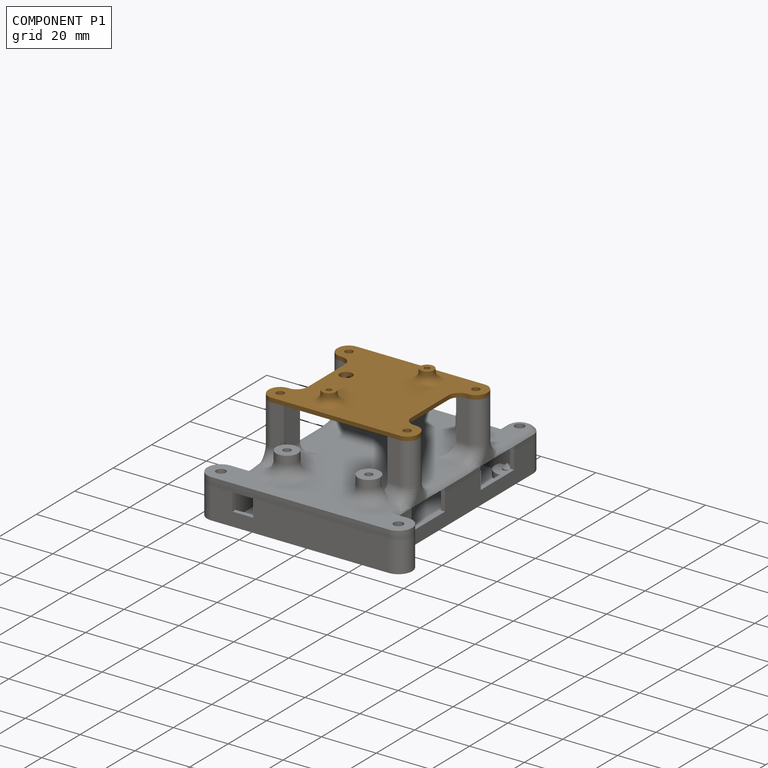
[diagram: component P1 — assembled]
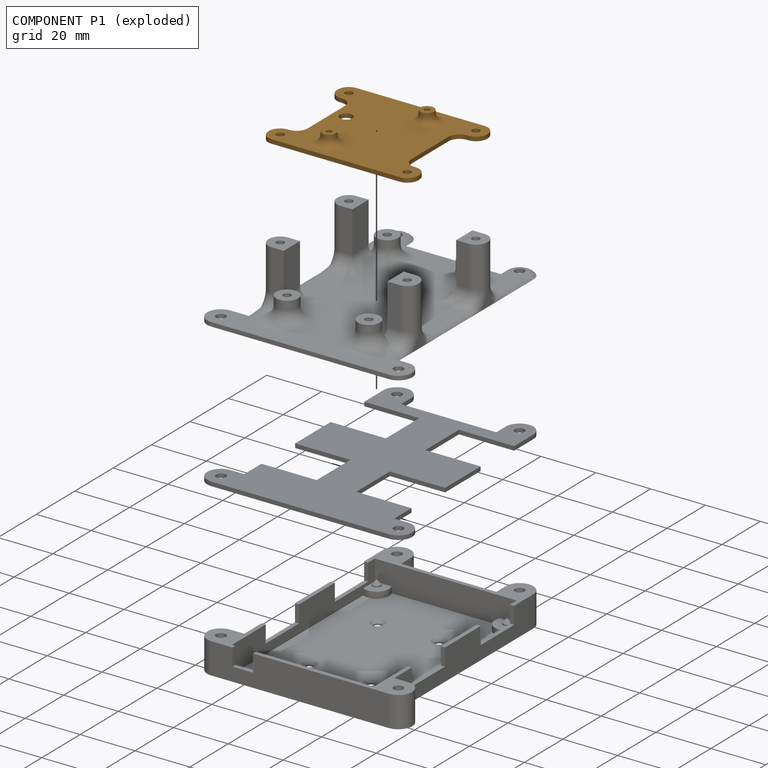
[diagram: component P1 — exploded]
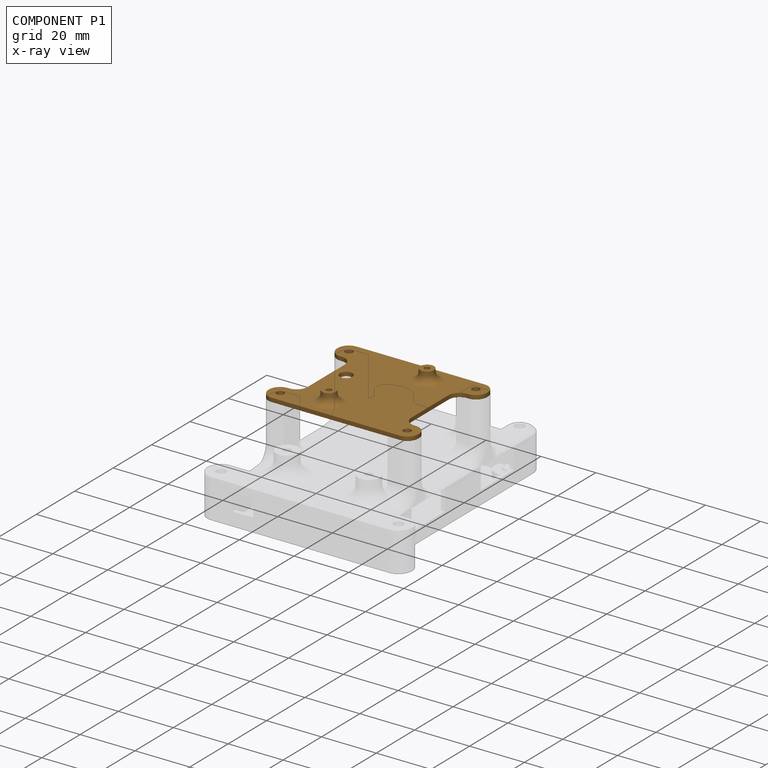
[diagram: component P1 — x-ray view]
COMPONENT P1 — geometry summary (no construction recipe available for this part):
  bounding box: 54.7 x 46.1 x 5.5 mm
  B-rep topology: 1 solid, 39 faces, 218 edges
  volume: 3066 mm^3 (22% of its bounding box)
Held by: FASTENED mate "Fastened 2" to P0.
PROVENANCE & LICENSES
Assembly (occurrences, transforms, mates, per-part STEP geometry): AutoMate dataset, Zenodo record 7776208, CC0.
Construction recipes: CADFS (HuggingFace VladPyatov/CADFS, CC-BY-4.0, layered over the ABC dataset), FeatureScript reconstruction programs keyed by ABC model id.
Join: ABC meta listings map ABC model id -> Onshape documentId; within a shared document, parts are matched by geometric signature (bounding-box dims + volume at 0.1% relative tolerance, exact B-rep face/solid counts).
Verification: 2 of this assembly's 4 components carry a recipe attachment, and every attachment is mesh-verified: the CADFS STEP and the AutoMate member STEP were compared as meshes in their shared local frame (symmetric sampled-point-to-mesh distance); worst across the 2 attachments: below the mesh-comparison resolution (tessellation chordal tolerance ~0.173 mm) on a 116 mm part.
Renders: orthographic iso camera (az 35 / el 25); the floor grid conveys scale (grid pitch printed in each image; no ruler). In the exploded view each component is displaced by its stored offset vector: the offsets alone carry the explosion direction (mate normal/axis signs are not orientation cues and do not encode it), and separation distances are assigned per mate-chain, not proportionally to assembly-order depth.
